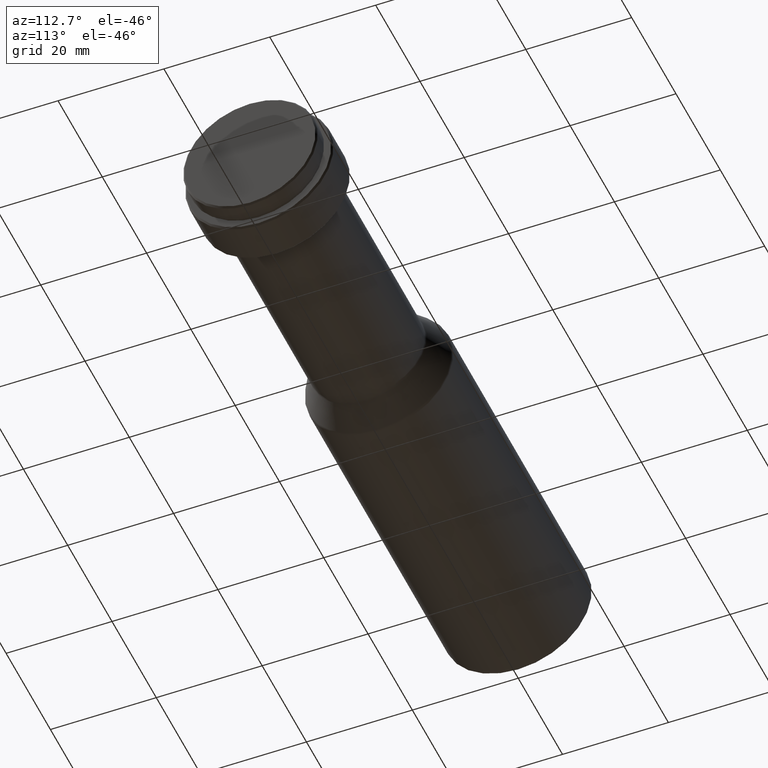
[diagram: clean part render]
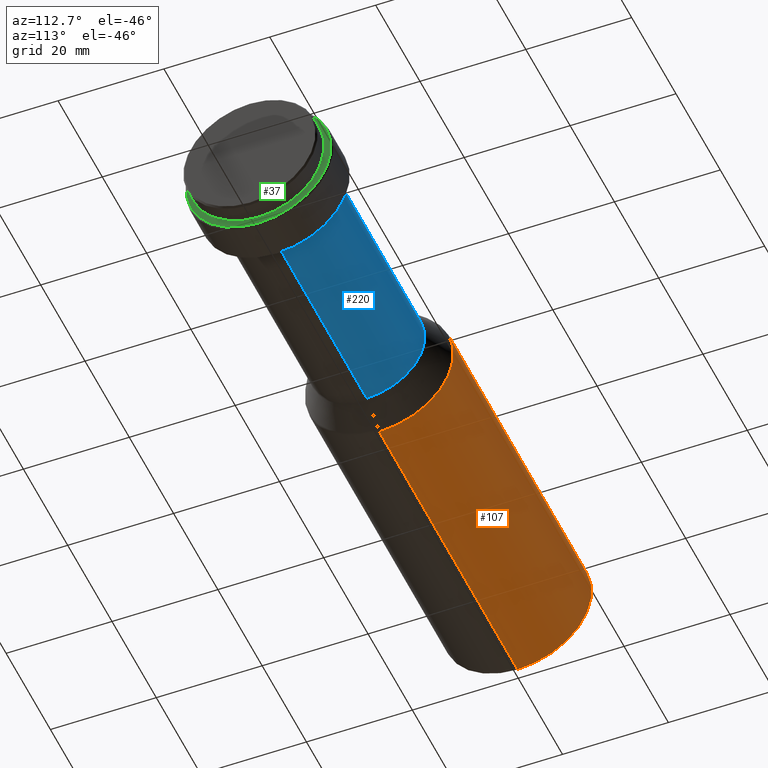
[diagram: same view with three faces highlighted in distinct colors, each labeled with its STEP entity id]
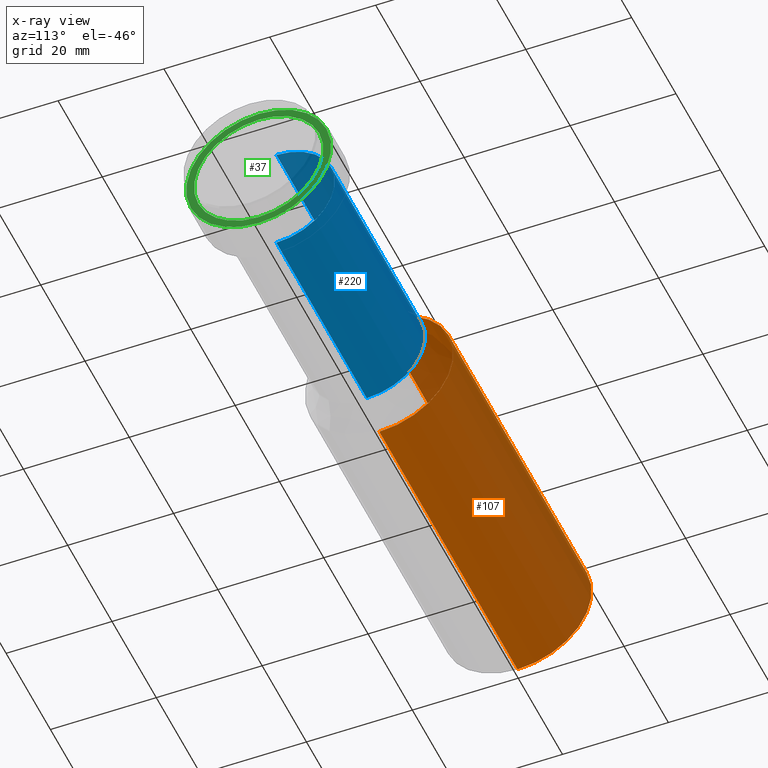
[diagram: x-ray of the same camera — body ghosted, the three highlighted faces saturated]
A machine part, auxiliary view with three faces highlighted in distinct colors.
The next image is the same camera in x-ray (body ghosted, the three faces saturated) — at least one of them is partly hidden behind the body in this view.
Their STEP definitions:

[orange] entity #107 — the highlighted cylindrical surface (partial cylindrical patch) has radius 14 mm, axis along (-1, -0, -0).
#14 = DIRECTION ( 'NONE',  ( 0.0000000000000000000, 0.0000000000000000000, 1.000000000000000000 ) ) ;
#26 = AXIS2_PLACEMENT_3D ( 'NONE', #784, #539, #14 ) ;
#69 = CARTESIAN_POINT ( 'NONE',  ( 62.70000000000000300, 1.714505518806294600E-015, -14.00000000000000000 ) ) ;
#80 = ORIENTED_EDGE ( 'NONE', *, *, #335, .T. ) ;
#83 = DIRECTION ( 'NONE',  ( -1.000000000000000000, -0.0000000000000000000, -0.0000000000000000000 ) ) ;
#88 = VECTOR ( 'NONE', #83, 1000.000000000000000 ) ;
#90 = CARTESIAN_POINT ( 'NONE',  ( 0.0000000000000000000, 0.0000000000000000000, 14.00000000000000200 ) ) ;
#107 = ADVANCED_FACE ( 'NONE', ( #218 ), #571, .T. ) ;
#142 = VERTEX_POINT ( 'NONE', #181 ) ;
#181 = CARTESIAN_POINT ( 'NONE',  ( 0.2999999999999999900, 1.714505518806294800E-015, 14.00000000000000200 ) ) ;
#186 = CARTESIAN_POINT ( 'NONE',  ( 0.0000000000000000000, 0.0000000000000000000, 0.0000000000000000000 ) ) ;
#218 = FACE_OUTER_BOUND ( 'NONE', #244, .T. ) ;
#244 = EDGE_LOOP ( 'NONE', ( #305, #80, #690, #329 ) ) ;
#246 = VERTEX_POINT ( 'NONE', #69 ) ;
#256 = CIRCLE ( 'NONE', #26, 14.00000000000000200 ) ;
#276 = DIRECTION ( 'NONE',  ( -1.000000000000000000, -0.0000000000000000000, -0.0000000000000000000 ) ) ;
#305 = ORIENTED_EDGE ( 'NONE', *, *, #509, .T. ) ;
#314 = LINE ( 'NONE', #90, #819 ) ;
#322 = EDGE_CURVE ( 'NONE', #142, #775, #256, .T. ) ;
#329 = ORIENTED_EDGE ( 'NONE', *, *, #372, .F. ) ;
#335 = EDGE_CURVE ( 'NONE', #246, #775, #432, .T. ) ;
#372 = EDGE_CURVE ( 'NONE', #687, #142, #314, .T. ) ;
#387 = CARTESIAN_POINT ( 'NONE',  ( 0.0000000000000000000, 1.714505518806294800E-015, -14.00000000000000200 ) ) ;
#432 = LINE ( 'NONE', #387, #88 ) ;
#441 = CARTESIAN_POINT ( 'NONE',  ( 62.70000000000000300, 0.0000000000000000000, 14.00000000000000000 ) ) ;
#475 = AXIS2_PLACEMENT_3D ( 'NONE', #186, #645, #698 ) ;
#488 = DIRECTION ( 'NONE',  ( 0.0000000000000000000, 0.0000000000000000000, 1.000000000000000000 ) ) ;
#495 = CIRCLE ( 'NONE', #787, 14.00000000000000000 ) ;
#509 = EDGE_CURVE ( 'NONE', #687, #246, #495, .T. ) ;
#539 = DIRECTION ( 'NONE',  ( -1.000000000000000000, -0.0000000000000000000, -0.0000000000000000000 ) ) ;
#571 = CYLINDRICAL_SURFACE ( 'NONE', #475, 14.00000000000000200 ) ;
#645 = DIRECTION ( 'NONE',  ( -1.000000000000000000, -0.0000000000000000000, -0.0000000000000000000 ) ) ;
#687 = VERTEX_POINT ( 'NONE', #441 ) ;
#690 = ORIENTED_EDGE ( 'NONE', *, *, #322, .F. ) ;
#698 = DIRECTION ( 'NONE',  ( 0.0000000000000000000, 0.0000000000000000000, 1.000000000000000000 ) ) ;
#714 = DIRECTION ( 'NONE',  ( -1.000000000000000000, -0.0000000000000000000, -0.0000000000000000000 ) ) ;
#775 = VERTEX_POINT ( 'NONE', #816 ) ;
#784 = CARTESIAN_POINT ( 'NONE',  ( 0.2999999999999999900, 0.0000000000000000000, 0.0000000000000000000 ) ) ;
#786 = CARTESIAN_POINT ( 'NONE',  ( 62.70000000000000300, 0.0000000000000000000, 0.0000000000000000000 ) ) ;
#787 = AXIS2_PLACEMENT_3D ( 'NONE', #786, #276, #488 ) ;
#816 = CARTESIAN_POINT ( 'NONE',  ( 0.2999999999999999900, 0.0000000000000000000, -14.00000000000000200 ) ) ;
#819 = VECTOR ( 'NONE', #714, 1000.000000000000000 ) ;

[blue] entity #220 — the highlighted cylindrical surface (partial cylindrical patch) has radius 11 mm, axis along (-1, -0, -0).
#19 = AXIS2_PLACEMENT_3D ( 'NONE', #530, #456, #522 ) ;
#35 = CARTESIAN_POINT ( 'NONE',  ( 109.1999999999999900, 1.347111479062088400E-015, -11.00000000000000000 ) ) ;
#40 = DIRECTION ( 'NONE',  ( -1.000000000000000000, -0.0000000000000000000, -0.0000000000000000000 ) ) ;
#57 = VECTOR ( 'NONE', #647, 1000.000000000000000 ) ;
#70 = LINE ( 'NONE', #258, #543 ) ;
#116 = CARTESIAN_POINT ( 'NONE',  ( 68.40000000000002000, 0.0000000000000000000, 0.0000000000000000000 ) ) ;
#131 = DIRECTION ( 'NONE',  ( 0.0000000000000000000, 0.0000000000000000000, 1.000000000000000000 ) ) ;
#143 = ORIENTED_EDGE ( 'NONE', *, *, #207, .F. ) ;
#159 = AXIS2_PLACEMENT_3D ( 'NONE', #116, #40, #558 ) ;
#180 = EDGE_LOOP ( 'NONE', ( #343, #346, #429, #143 ) ) ;
#188 = EDGE_CURVE ( 'NONE', #668, #527, #384, .T. ) ;
#195 = CYLINDRICAL_SURFACE ( 'NONE', #19, 10.99999999999999500 ) ;
#198 = DIRECTION ( 'NONE',  ( -1.000000000000000000, -0.0000000000000000000, -0.0000000000000000000 ) ) ;
#207 = EDGE_CURVE ( 'NONE', #668, #504, #70, .T. ) ;
#211 = FACE_OUTER_BOUND ( 'NONE', #180, .T. ) ;
#212 = CARTESIAN_POINT ( 'NONE',  ( 68.40000000000002000, 0.0000000000000000000, 10.99999999999998900 ) ) ;
#220 = ADVANCED_FACE ( 'NONE', ( #211 ), #195, .T. ) ;
#238 = CIRCLE ( 'NONE', #159, 10.99999999999998900 ) ;
#258 = CARTESIAN_POINT ( 'NONE',  ( 0.0000000000000000000, 0.0000000000000000000, 10.99999999999999500 ) ) ;
#259 = EDGE_CURVE ( 'NONE', #527, #813, #707, .T. ) ;
#269 = CARTESIAN_POINT ( 'NONE',  ( 68.40000000000002000, 1.355405587503313300E-015, -10.99999999999998900 ) ) ;
#343 = ORIENTED_EDGE ( 'NONE', *, *, #188, .T. ) ;
#346 = ORIENTED_EDGE ( 'NONE', *, *, #259, .T. ) ;
#384 = CIRCLE ( 'NONE', #646, 11.00000000000000000 ) ;
#429 = ORIENTED_EDGE ( 'NONE', *, *, #651, .F. ) ;
#456 = DIRECTION ( 'NONE',  ( -1.000000000000000000, -0.0000000000000000000, -0.0000000000000000000 ) ) ;
#459 = DIRECTION ( 'NONE',  ( -1.000000000000000000, -0.0000000000000000000, -0.0000000000000000000 ) ) ;
#504 = VERTEX_POINT ( 'NONE', #212 ) ;
#522 = DIRECTION ( 'NONE',  ( 0.0000000000000000000, 0.0000000000000000000, 1.000000000000000000 ) ) ;
#527 = VERTEX_POINT ( 'NONE', #35 ) ;
#530 = CARTESIAN_POINT ( 'NONE',  ( 0.0000000000000000000, 0.0000000000000000000, 0.0000000000000000000 ) ) ;
#543 = VECTOR ( 'NONE', #459, 1000.000000000000000 ) ;
#558 = DIRECTION ( 'NONE',  ( 0.0000000000000000000, 0.0000000000000000000, 1.000000000000000000 ) ) ;
#562 = CARTESIAN_POINT ( 'NONE',  ( 109.1999999999999900, 0.0000000000000000000, 11.00000000000000000 ) ) ;
#646 = AXIS2_PLACEMENT_3D ( 'NONE', #764, #198, #131 ) ;
#647 = DIRECTION ( 'NONE',  ( -1.000000000000000000, -0.0000000000000000000, -0.0000000000000000000 ) ) ;
#651 = EDGE_CURVE ( 'NONE', #504, #813, #238, .T. ) ;
#658 = CARTESIAN_POINT ( 'NONE',  ( 0.0000000000000000000, 1.347111479062087800E-015, -10.99999999999999500 ) ) ;
#668 = VERTEX_POINT ( 'NONE', #562 ) ;
#707 = LINE ( 'NONE', #658, #57 ) ;
#764 = CARTESIAN_POINT ( 'NONE',  ( 109.1999999999999900, 0.0000000000000000000, 0.0000000000000000000 ) ) ;
#813 = VERTEX_POINT ( 'NONE', #269 ) ;

[green] entity #37 — the highlighted planar face has unit normal (-1, 0, -0).
#25 = DIRECTION ( 'NONE',  ( 0.0000000000000000000, 0.0000000000000000000, 1.000000000000000000 ) ) ;
#30 = CIRCLE ( 'NONE', #765, 13.70000000000000100 ) ;
#37 = ADVANCED_FACE ( 'NONE', ( #552, #423 ), #494, .F. ) ;
#60 = ORIENTED_EDGE ( 'NONE', *, *, #224, .F. ) ;
#86 = VERTEX_POINT ( 'NONE', #570 ) ;
#96 = ORIENTED_EDGE ( 'NONE', *, *, #799, .T. ) ;
#99 = DIRECTION ( 'NONE',  ( -0.0000000000000000000, 0.0000000000000000000, 1.000000000000000000 ) ) ;
#111 = AXIS2_PLACEMENT_3D ( 'NONE', #184, #433, #231 ) ;
#139 = DIRECTION ( 'NONE',  ( -1.000000000000000000, -0.0000000000000000000, -0.0000000000000000000 ) ) ;
#146 = AXIS2_PLACEMENT_3D ( 'NONE', #771, #139, #317 ) ;
#155 = CARTESIAN_POINT ( 'NONE',  ( 117.2000000000000000, 0.0000000000000000000, 0.0000000000000000000 ) ) ;
#164 = CARTESIAN_POINT ( 'NONE',  ( 117.2000000000000000, 13.70000000000000100, 0.0000000000000000000 ) ) ;
#184 = CARTESIAN_POINT ( 'NONE',  ( 117.2000000000000000, 0.0000000000000000000, 0.0000000000000000000 ) ) ;
#221 = ORIENTED_EDGE ( 'NONE', *, *, #236, .F. ) ;
#224 = EDGE_CURVE ( 'NONE', #357, #666, #30, .T. ) ;
#231 = DIRECTION ( 'NONE',  ( 0.0000000000000000000, 0.0000000000000000000, 1.000000000000000000 ) ) ;
#236 = EDGE_CURVE ( 'NONE', #666, #357, #742, .T. ) ;
#300 = AXIS2_PLACEMENT_3D ( 'NONE', #155, #339, #25 ) ;
#307 = EDGE_LOOP ( 'NONE', ( #601, #96 ) ) ;
#317 = DIRECTION ( 'NONE',  ( 0.0000000000000000000, 0.0000000000000000000, 1.000000000000000000 ) ) ;
#339 = DIRECTION ( 'NONE',  ( -1.000000000000000000, -0.0000000000000000000, -0.0000000000000000000 ) ) ;
#357 = VERTEX_POINT ( 'NONE', #537 ) ;
#368 = CARTESIAN_POINT ( 'NONE',  ( 117.2000000000000000, 1.494069094959771300E-015, -12.20000000000000300 ) ) ;
#423 = FACE_BOUND ( 'NONE', #307, .T. ) ;
#433 = DIRECTION ( 'NONE',  ( -1.000000000000000000, -0.0000000000000000000, -0.0000000000000000000 ) ) ;
#453 = CARTESIAN_POINT ( 'NONE',  ( 117.2000000000000000, 0.0000000000000000000, 0.0000000000000000000 ) ) ;
#494 = PLANE ( 'NONE',  #675 ) ;
#503 = CIRCLE ( 'NONE', #111, 12.20000000000000300 ) ;
#528 = DIRECTION ( 'NONE',  ( -1.000000000000000000, -0.0000000000000000000, -0.0000000000000000000 ) ) ;
#537 = CARTESIAN_POINT ( 'NONE',  ( 117.2000000000000000, 1.696135816819084200E-015, -13.70000000000000100 ) ) ;
#552 = FACE_OUTER_BOUND ( 'NONE', #559, .T. ) ;
#559 = EDGE_LOOP ( 'NONE', ( #221, #60 ) ) ;
#563 = EDGE_CURVE ( 'NONE', #86, #660, #625, .T. ) ;
#565 = DIRECTION ( 'NONE',  ( -1.000000000000000000, 0.0000000000000000000, -0.0000000000000000000 ) ) ;
#570 = CARTESIAN_POINT ( 'NONE',  ( 117.2000000000000000, 0.0000000000000000000, 12.20000000000000300 ) ) ;
#601 = ORIENTED_EDGE ( 'NONE', *, *, #563, .T. ) ;
#625 = CIRCLE ( 'NONE', #300, 12.20000000000000300 ) ;
#649 = DIRECTION ( 'NONE',  ( 0.0000000000000000000, 0.0000000000000000000, 1.000000000000000000 ) ) ;
#660 = VERTEX_POINT ( 'NONE', #368 ) ;
#666 = VERTEX_POINT ( 'NONE', #745 ) ;
#675 = AXIS2_PLACEMENT_3D ( 'NONE', #164, #565, #99 ) ;
#742 = CIRCLE ( 'NONE', #146, 13.70000000000000100 ) ;
#745 = CARTESIAN_POINT ( 'NONE',  ( 117.2000000000000000, 0.0000000000000000000, 13.70000000000000100 ) ) ;
#765 = AXIS2_PLACEMENT_3D ( 'NONE', #453, #528, #649 ) ;
#771 = CARTESIAN_POINT ( 'NONE',  ( 117.2000000000000000, 0.0000000000000000000, 0.0000000000000000000 ) ) ;
#799 = EDGE_CURVE ( 'NONE', #660, #86, #503, .T. ) ;